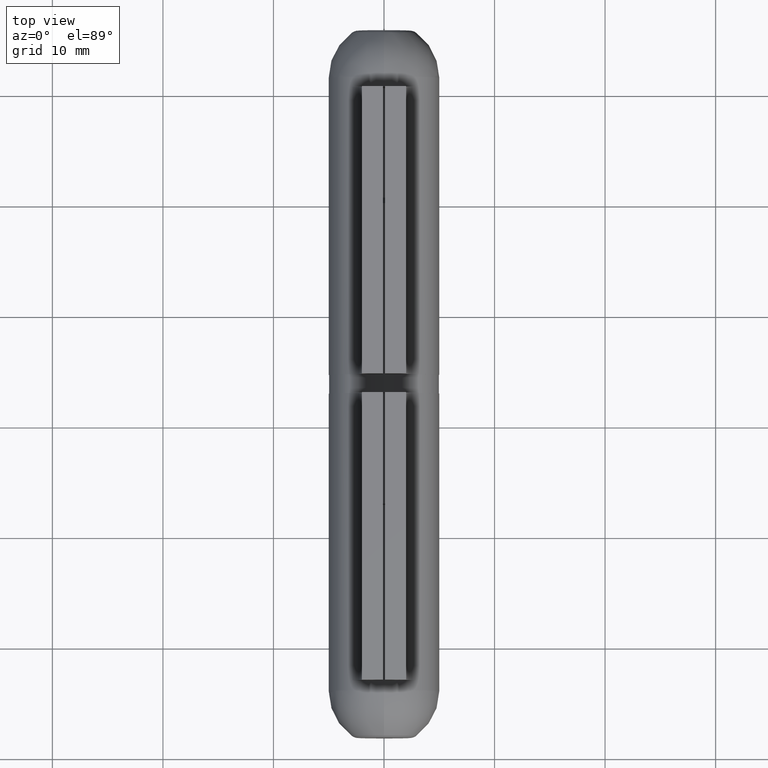
[diagram: clean part render]
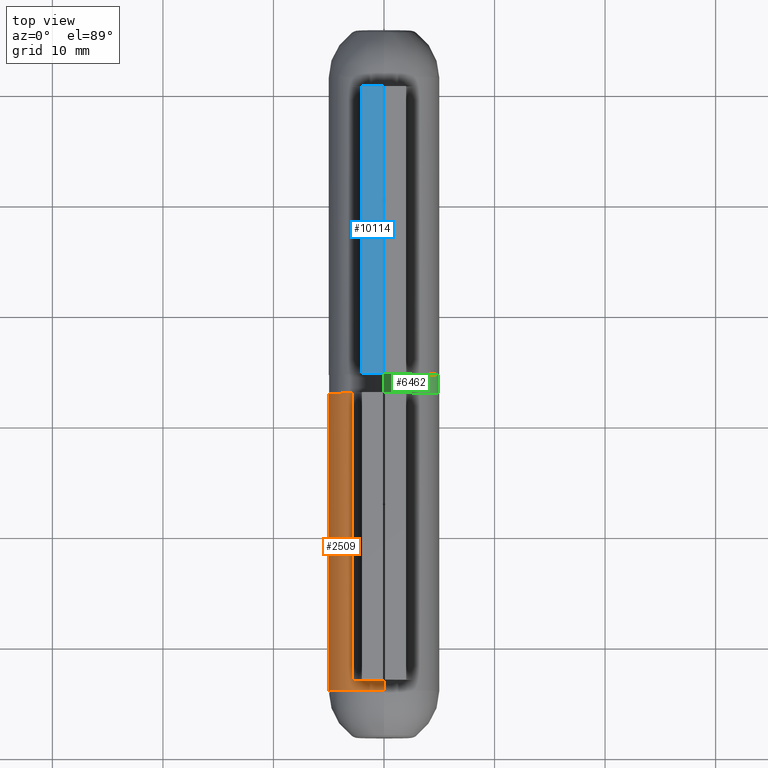
[diagram: same view with three faces highlighted in distinct colors, each labeled with its STEP entity id]
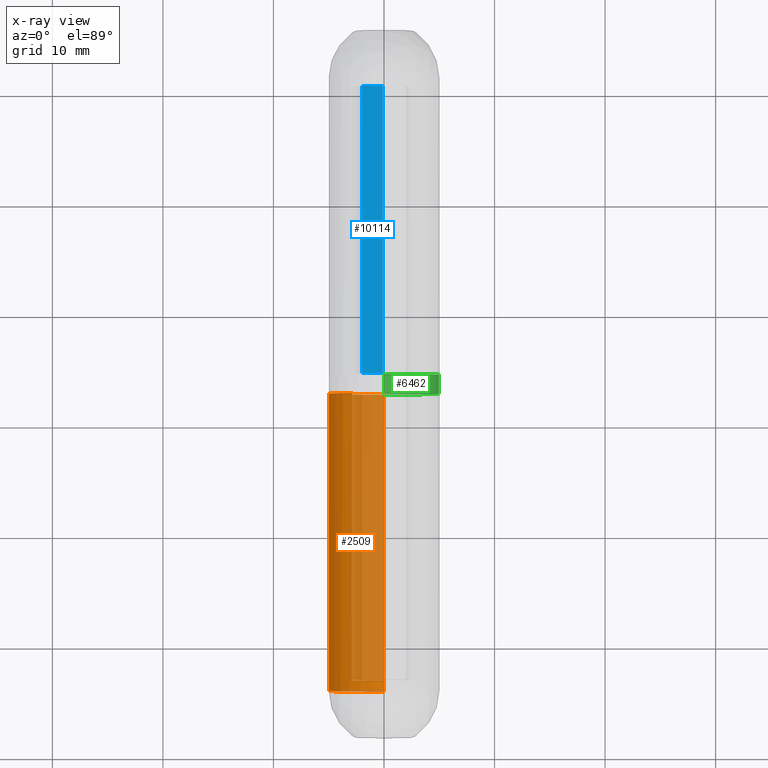
[diagram: x-ray of the same camera — body ghosted, the three highlighted faces saturated]
A machine part, top view with three faces highlighted in distinct colors.
The next image is the same camera in x-ray (body ghosted, the three faces saturated) — at least one of them is partly hidden behind the body in this view.
Their STEP definitions:

[orange] entity #2509 — the highlighted cylindrical surface (partial cylindrical patch) has radius 5 mm, axis along (-0, -1, -0).
#218 = AXIS2_PLACEMENT_3D ( 'NONE', #12005, #3270, #9730 ) ;
#231 = VERTEX_POINT ( 'NONE', #10240 ) ;
#298 = CARTESIAN_POINT ( 'NONE',  ( 0.000000000000000000, -13.89999999999998614, -5.000000000000001776 ) ) ;
#368 = AXIS2_PLACEMENT_3D ( 'NONE', #1888, #1981, #4167 ) ;
#590 = LINE ( 'NONE', #12025, #8588 ) ;
#762 = EDGE_CURVE ( 'NONE', #9210, #12842, #775, .T. ) ;
#775 = CIRCLE ( 'NONE', #3354, 5.000000000000001776 ) ;
#922 = AXIS2_PLACEMENT_3D ( 'NONE', #8718, #10852, #8535 ) ;
#1361 = CARTESIAN_POINT ( 'NONE',  ( -2.857142857142857650, 13.00000000000000000, 4.103259033241449139 ) ) ;
#1461 = VERTEX_POINT ( 'NONE', #13993 ) ;
#1580 = EDGE_CURVE ( 'NONE', #1461, #1641, #5672, .T. ) ;
#1632 = CARTESIAN_POINT ( 'NONE',  ( 6.123233995736765296E-16, 13.00000000000000000, 5.000000000000000000 ) ) ;
#1641 = VERTEX_POINT ( 'NONE', #11086 ) ;
#1888 = CARTESIAN_POINT ( 'NONE',  ( 0.000000000000000000, -12.99999999999998579, 0.000000000000000000 ) ) ;
#1895 = CARTESIAN_POINT ( 'NONE',  ( -0.1723120683631384764, -12.99999999999998579, 4.997029973003606074 ) ) ;
#1981 = DIRECTION ( 'NONE',  ( -0.000000000000000000, -1.000000000000000000, -0.000000000000000000 ) ) ;
#2266 = ORIENTED_EDGE ( 'NONE', *, *, #1580, .F. ) ;
#2454 = LINE ( 'NONE', #1361, #3291 ) ;
#2509 = ADVANCED_FACE ( 'NONE', ( #6171 ), #5135, .T. ) ;
#2721 = ORIENTED_EDGE ( 'NONE', *, *, #5715, .F. ) ;
#3263 = EDGE_CURVE ( 'NONE', #1641, #7907, #2454, .T. ) ;
#3270 = DIRECTION ( 'NONE',  ( -0.000000000000000000, -1.000000000000000000, -0.000000000000000000 ) ) ;
#3291 = VECTOR ( 'NONE', #12627, 1000.000000000000000 ) ;
#3354 = AXIS2_PLACEMENT_3D ( 'NONE', #13412, #5833, #9036 ) ;
#3528 = DIRECTION ( 'NONE',  ( -0.000000000000000000, -1.000000000000000000, -0.000000000000000000 ) ) ;
#3682 = ORIENTED_EDGE ( 'NONE', *, *, #4017, .T. ) ;
#4017 = EDGE_CURVE ( 'NONE', #231, #12972, #13822, .T. ) ;
#4051 = LINE ( 'NONE', #1632, #13241 ) ;
#4167 = DIRECTION ( 'NONE',  ( 0.000000000000000000, 0.000000000000000000, -1.000000000000000000 ) ) ;
#4708 = DIRECTION ( 'NONE',  ( 0.000000000000000000, 1.000000000000000000, 0.000000000000000000 ) ) ;
#5135 = CYLINDRICAL_SURFACE ( 'NONE', #922, 5.000000000000000000 ) ;
#5672 = CIRCLE ( 'NONE', #7810, 5.000000000000000000 ) ;
#5673 = ORIENTED_EDGE ( 'NONE', *, *, #3263, .F. ) ;
#5715 = EDGE_CURVE ( 'NONE', #231, #9210, #4051, .T. ) ;
#5833 = DIRECTION ( 'NONE',  ( -0.000000000000000000, -1.000000000000000000, -0.000000000000000000 ) ) ;
#6171 = FACE_OUTER_BOUND ( 'NONE', #12692, .T. ) ;
#7810 = AXIS2_PLACEMENT_3D ( 'NONE', #11278, #4708, #10141 ) ;
#7907 = VERTEX_POINT ( 'NONE', #13715 ) ;
#8535 = DIRECTION ( 'NONE',  ( 0.000000000000000000, 0.000000000000000000, -1.000000000000000000 ) ) ;
#8588 = VECTOR ( 'NONE', #3528, 1000.000000000000000 ) ;
#8718 = CARTESIAN_POINT ( 'NONE',  ( 0.000000000000000000, 13.00000000000000000, 0.000000000000000000 ) ) ;
#9036 = DIRECTION ( 'NONE',  ( 0.000000000000000000, 0.000000000000000000, -1.000000000000000000 ) ) ;
#9210 = VERTEX_POINT ( 'NONE', #13913 ) ;
#9417 = ORIENTED_EDGE ( 'NONE', *, *, #9993, .T. ) ;
#9730 = DIRECTION ( 'NONE',  ( 0.000000000000000000, 0.000000000000000000, -1.000000000000000000 ) ) ;
#9993 = EDGE_CURVE ( 'NONE', #1461, #12842, #590, .T. ) ;
#10141 = DIRECTION ( 'NONE',  ( 0.000000000000000000, 0.000000000000000000, 1.000000000000000000 ) ) ;
#10240 = CARTESIAN_POINT ( 'NONE',  ( 6.123233995736765296E-16, -12.99999999999998579, 5.000000000000000000 ) ) ;
#10380 = CIRCLE ( 'NONE', #218, 5.000000000000000000 ) ;
#10747 = ORIENTED_EDGE ( 'NONE', *, *, #762, .F. ) ;
#10852 = DIRECTION ( 'NONE',  ( -0.000000000000000000, -1.000000000000000000, -0.000000000000000000 ) ) ;
#11086 = CARTESIAN_POINT ( 'NONE',  ( -2.857142857142857650, 13.00000000000000000, 4.103259033241449139 ) ) ;
#11087 = ORIENTED_EDGE ( 'NONE', *, *, #11361, .T. ) ;
#11278 = CARTESIAN_POINT ( 'NONE',  ( 0.000000000000000000, 13.00000000000000000, 0.000000000000000000 ) ) ;
#11361 = EDGE_CURVE ( 'NONE', #12972, #7907, #10380, .T. ) ;
#12005 = CARTESIAN_POINT ( 'NONE',  ( 0.000000000000000000, -12.99999999999998579, 0.000000000000000000 ) ) ;
#12025 = CARTESIAN_POINT ( 'NONE',  ( 0.000000000000000000, 13.00000000000000000, -5.000000000000000000 ) ) ;
#12415 = DIRECTION ( 'NONE',  ( -0.000000000000000000, -1.000000000000000000, -0.000000000000000000 ) ) ;
#12627 = DIRECTION ( 'NONE',  ( -0.000000000000000000, -1.000000000000000000, -0.000000000000000000 ) ) ;
#12692 = EDGE_LOOP ( 'NONE', ( #2721, #3682, #11087, #5673, #2266, #9417, #10747 ) ) ;
#12842 = VERTEX_POINT ( 'NONE', #298 ) ;
#12972 = VERTEX_POINT ( 'NONE', #1895 ) ;
#13241 = VECTOR ( 'NONE', #12415, 1000.000000000000000 ) ;
#13412 = CARTESIAN_POINT ( 'NONE',  ( 0.000000000000000000, -13.89999999999998614, 0.000000000000000000 ) ) ;
#13715 = CARTESIAN_POINT ( 'NONE',  ( -2.857142857142857650, -13.00000000000000000, 4.103259033241449139 ) ) ;
#13822 = CIRCLE ( 'NONE', #368, 5.000000000000000000 ) ;
#13913 = CARTESIAN_POINT ( 'NONE',  ( 6.123233995736768255E-16, -13.89999999999998614, 5.000000000000002665 ) ) ;
#13993 = CARTESIAN_POINT ( 'NONE',  ( 0.000000000000000000, 13.00000000000000000, -5.000000000000000000 ) ) ;

[blue] entity #10114 — the highlighted planar face has unit normal (0, 0, -1).
#39 = ORIENTED_EDGE ( 'NONE', *, *, #5420, .F. ) ;
#79 = LINE ( 'NONE', #11560, #10650 ) ;
#250 = EDGE_CURVE ( 'NONE', #9925, #13146, #11990, .T. ) ;
#823 = DIRECTION ( 'NONE',  ( -0.000000000000000000, -1.000000000000000000, -0.000000000000000000 ) ) ;
#1194 = CARTESIAN_POINT ( 'NONE',  ( -0.09999999999999917288, -13.00000000000000000, 8.500000000000000000 ) ) ;
#1341 = ORIENTED_EDGE ( 'NONE', *, *, #250, .T. ) ;
#2333 = VECTOR ( 'NONE', #11522, 1000.000000000000000 ) ;
#2611 = ORIENTED_EDGE ( 'NONE', *, *, #8654, .T. ) ;
#3507 = AXIS2_PLACEMENT_3D ( 'NONE', #7885, #10274, #4785 ) ;
#3906 = CARTESIAN_POINT ( 'NONE',  ( -1.999999999999999112, -13.00000000000000000, 8.500000000000000000 ) ) ;
#4472 = DIRECTION ( 'NONE',  ( 1.000000000000000000, 0.000000000000000000, 0.000000000000000000 ) ) ;
#4785 = DIRECTION ( 'NONE',  ( -1.000000000000000000, 0.000000000000000000, -0.000000000000000000 ) ) ;
#4888 = VECTOR ( 'NONE', #4472, 1000.000000000000000 ) ;
#5128 = ORIENTED_EDGE ( 'NONE', *, *, #12703, .F. ) ;
#5420 = EDGE_CURVE ( 'NONE', #11273, #13146, #9679, .T. ) ;
#7133 = DIRECTION ( 'NONE',  ( -0.000000000000000000, -1.000000000000000000, -0.000000000000000000 ) ) ;
#7389 = FACE_OUTER_BOUND ( 'NONE', #8699, .T. ) ;
#7885 = CARTESIAN_POINT ( 'NONE',  ( -1.999999999999999112, 13.00000000000000000, 8.500000000000000000 ) ) ;
#8654 = EDGE_CURVE ( 'NONE', #12288, #9925, #79, .T. ) ;
#8699 = EDGE_LOOP ( 'NONE', ( #1341, #39, #5128, #2611 ) ) ;
#9679 = LINE ( 'NONE', #11384, #13079 ) ;
#9925 = VERTEX_POINT ( 'NONE', #11849 ) ;
#10114 = ADVANCED_FACE ( 'NONE', ( #7389 ), #11224, .F. ) ;
#10274 = DIRECTION ( 'NONE',  ( 0.000000000000000000, 0.000000000000000000, -1.000000000000000000 ) ) ;
#10650 = VECTOR ( 'NONE', #7133, 1000.000000000000000 ) ;
#10865 = CARTESIAN_POINT ( 'NONE',  ( -1.999999999999999112, 13.00000000000000000, 8.500000000000000000 ) ) ;
#11160 = CARTESIAN_POINT ( 'NONE',  ( -1.999999999999999112, 13.00000000000000000, 8.500000000000000000 ) ) ;
#11224 = PLANE ( 'NONE',  #3507 ) ;
#11273 = VERTEX_POINT ( 'NONE', #12958 ) ;
#11384 = CARTESIAN_POINT ( 'NONE',  ( -0.09999999999999917288, 13.00000000000000000, 8.500000000000000000 ) ) ;
#11522 = DIRECTION ( 'NONE',  ( 1.000000000000000000, 0.000000000000000000, 0.000000000000000000 ) ) ;
#11560 = CARTESIAN_POINT ( 'NONE',  ( -1.999999999999999112, 13.00000000000000000, 8.500000000000000000 ) ) ;
#11849 = CARTESIAN_POINT ( 'NONE',  ( -1.999999999999999112, -13.00000000000000000, 8.500000000000000000 ) ) ;
#11990 = LINE ( 'NONE', #3906, #2333 ) ;
#12288 = VERTEX_POINT ( 'NONE', #11160 ) ;
#12703 = EDGE_CURVE ( 'NONE', #12288, #11273, #13582, .T. ) ;
#12958 = CARTESIAN_POINT ( 'NONE',  ( -0.09999999999999917288, 13.00000000000000000, 8.500000000000000000 ) ) ;
#13079 = VECTOR ( 'NONE', #823, 1000.000000000000000 ) ;
#13146 = VERTEX_POINT ( 'NONE', #1194 ) ;
#13582 = LINE ( 'NONE', #10865, #4888 ) ;

[green] entity #6462 — the highlighted cylindrical surface (partial cylindrical patch) has radius 5 mm, axis along (-0, -1, -0).
#129 = CIRCLE ( 'NONE', #12899, 5.000000000000000000 ) ;
#194 = EDGE_LOOP ( 'NONE', ( #1682, #5968, #13834, #2887 ) ) ;
#575 = EDGE_CURVE ( 'NONE', #9593, #5728, #9636, .T. ) ;
#1156 = FACE_OUTER_BOUND ( 'NONE', #194, .T. ) ;
#1658 = CARTESIAN_POINT ( 'NONE',  ( 0.000000000000000000, 14.69999999999999929, -5.000000000000000000 ) ) ;
#1682 = ORIENTED_EDGE ( 'NONE', *, *, #12823, .F. ) ;
#2842 = VECTOR ( 'NONE', #3176, 1000.000000000000000 ) ;
#2887 = ORIENTED_EDGE ( 'NONE', *, *, #575, .F. ) ;
#3176 = DIRECTION ( 'NONE',  ( -0.000000000000000000, -1.000000000000000000, -0.000000000000000000 ) ) ;
#3205 = DIRECTION ( 'NONE',  ( 0.000000000000000000, 0.000000000000000000, 1.000000000000000000 ) ) ;
#3583 = DIRECTION ( 'NONE',  ( 0.000000000000000000, 0.000000000000000000, 1.000000000000000000 ) ) ;
#4844 = AXIS2_PLACEMENT_3D ( 'NONE', #9855, #8951, #6703 ) ;
#4909 = CARTESIAN_POINT ( 'NONE',  ( 6.123233995736766282E-16, 13.00000000000000000, 5.000000000000000000 ) ) ;
#5551 = LINE ( 'NONE', #10879, #6582 ) ;
#5576 = AXIS2_PLACEMENT_3D ( 'NONE', #11844, #9706, #3205 ) ;
#5728 = VERTEX_POINT ( 'NONE', #10175 ) ;
#5968 = ORIENTED_EDGE ( 'NONE', *, *, #6018, .T. ) ;
#6018 = EDGE_CURVE ( 'NONE', #9780, #12395, #5551, .T. ) ;
#6374 = CARTESIAN_POINT ( 'NONE',  ( 0.000000000000000000, 14.69999999999999929, -5.000000000000000000 ) ) ;
#6462 = ADVANCED_FACE ( 'NONE', ( #1156 ), #13068, .T. ) ;
#6582 = VECTOR ( 'NONE', #10834, 1000.000000000000000 ) ;
#6703 = DIRECTION ( 'NONE',  ( 0.000000000000000000, 0.000000000000000000, -1.000000000000000000 ) ) ;
#8951 = DIRECTION ( 'NONE',  ( -0.000000000000000000, -1.000000000000000000, -0.000000000000000000 ) ) ;
#8961 = DIRECTION ( 'NONE',  ( 0.000000000000000000, 1.000000000000000000, 0.000000000000000000 ) ) ;
#9593 = VERTEX_POINT ( 'NONE', #1658 ) ;
#9636 = LINE ( 'NONE', #6374, #2842 ) ;
#9706 = DIRECTION ( 'NONE',  ( 0.000000000000000000, 1.000000000000000000, 0.000000000000000000 ) ) ;
#9780 = VERTEX_POINT ( 'NONE', #13847 ) ;
#9855 = CARTESIAN_POINT ( 'NONE',  ( 0.000000000000000000, 14.69999999999999929, 0.000000000000000000 ) ) ;
#10175 = CARTESIAN_POINT ( 'NONE',  ( 0.000000000000000000, 13.00000000000000000, -5.000000000000000000 ) ) ;
#10834 = DIRECTION ( 'NONE',  ( -0.000000000000000000, -1.000000000000000000, -0.000000000000000000 ) ) ;
#10858 = EDGE_CURVE ( 'NONE', #12395, #5728, #13424, .T. ) ;
#10879 = CARTESIAN_POINT ( 'NONE',  ( 6.123233995736766282E-16, 14.69999999999999929, 5.000000000000000000 ) ) ;
#11844 = CARTESIAN_POINT ( 'NONE',  ( 0.000000000000000000, 13.00000000000000000, 0.000000000000000000 ) ) ;
#12339 = CARTESIAN_POINT ( 'NONE',  ( 0.000000000000000000, 14.69999999999999929, 0.000000000000000000 ) ) ;
#12395 = VERTEX_POINT ( 'NONE', #4909 ) ;
#12823 = EDGE_CURVE ( 'NONE', #9780, #9593, #129, .T. ) ;
#12899 = AXIS2_PLACEMENT_3D ( 'NONE', #12339, #8961, #3583 ) ;
#13068 = CYLINDRICAL_SURFACE ( 'NONE', #4844, 5.000000000000000000 ) ;
#13424 = CIRCLE ( 'NONE', #5576, 5.000000000000000000 ) ;
#13834 = ORIENTED_EDGE ( 'NONE', *, *, #10858, .T. ) ;
#13847 = CARTESIAN_POINT ( 'NONE',  ( 6.123233995736766282E-16, 14.69999999999999929, 5.000000000000000000 ) ) ;